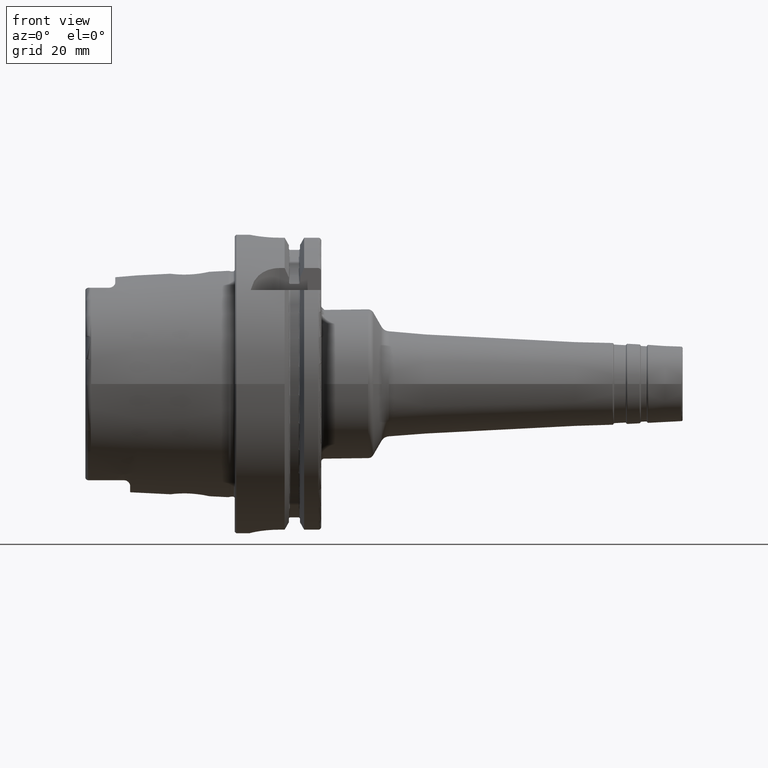
[diagram: clean part render]
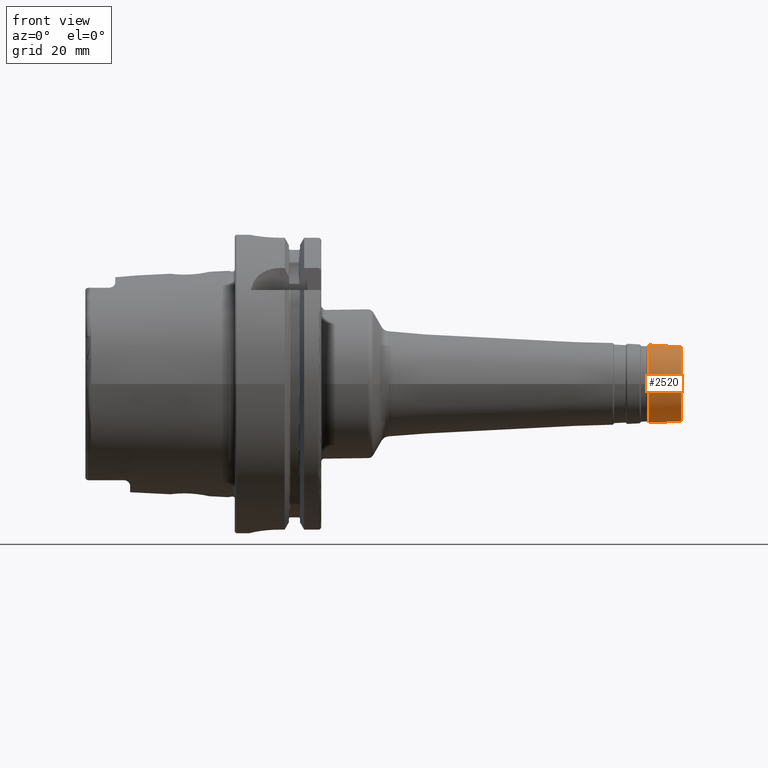
[diagram: same view with one face highlighted and labeled with its STEP entity id]
A machine part, front view. The second image highlights one B-rep face of the part: STEP entity #2520.
In plain terms, the highlighted conical surface has half-angle 3 deg.
Its self-contained STEP definition (entity closure, byte-faithful):
#99=CONICAL_SURFACE('',#2730,12.8062069282811,0.0523598775598298);
#181=LINE('',#4024,#295);
#295=VECTOR('',#3189,12.8062069282811);
#443=FACE_OUTER_BOUND('',#578,.T.);
#578=EDGE_LOOP('',(#1755,#1756,#1757,#1758,#1759,#1760,#1761,#1762));
#760=CIRCLE('',#2726,13.1003273851922);
#761=CIRCLE('',#2727,13.1003273851922);
#763=CIRCLE('',#2729,13.1003273851922);
#764=CIRCLE('',#2731,12.5248324840198);
#765=CIRCLE('',#2732,12.5248324840198);
#766=CIRCLE('',#2733,12.5248324840198);
#989=VERTEX_POINT('',#4011);
#990=VERTEX_POINT('',#4012);
#991=VERTEX_POINT('',#4014);
#992=VERTEX_POINT('',#4019);
#993=VERTEX_POINT('',#4020);
#994=VERTEX_POINT('',#4022);
#1290=EDGE_CURVE('',#989,#990,#760,.T.);
#1291=EDGE_CURVE('',#990,#991,#761,.T.);
#1293=EDGE_CURVE('',#991,#989,#763,.T.);
#1294=EDGE_CURVE('',#992,#993,#764,.T.);
#1295=EDGE_CURVE('',#994,#992,#765,.T.);
#1296=EDGE_CURVE('',#994,#990,#181,.T.);
#1297=EDGE_CURVE('',#993,#994,#766,.T.);
#1755=ORIENTED_EDGE('',*,*,#1294,.F.);
#1756=ORIENTED_EDGE('',*,*,#1295,.F.);
#1757=ORIENTED_EDGE('',*,*,#1296,.T.);
#1758=ORIENTED_EDGE('',*,*,#1290,.F.);
#1759=ORIENTED_EDGE('',*,*,#1293,.F.);
#1760=ORIENTED_EDGE('',*,*,#1291,.F.);
#1761=ORIENTED_EDGE('',*,*,#1296,.F.);
#1762=ORIENTED_EDGE('',*,*,#1297,.F.);
#2520=ADVANCED_FACE('',(#443),#99,.T.);
#2726=AXIS2_PLACEMENT_3D('',#4013,#3175,#3176);
#2727=AXIS2_PLACEMENT_3D('',#4015,#3177,#3178);
#2729=AXIS2_PLACEMENT_3D('',#4017,#3181,#3182);
#2730=AXIS2_PLACEMENT_3D('',#4018,#3183,#3184);
#2731=AXIS2_PLACEMENT_3D('',#4021,#3185,#3186);
#2732=AXIS2_PLACEMENT_3D('',#4023,#3187,#3188);
#2733=AXIS2_PLACEMENT_3D('',#4025,#3190,#3191);
#3175=DIRECTION('center_axis',(-1.,0.,0.));
#3176=DIRECTION('ref_axis',(0.,-1.,3.06161699786838E-17));
#3177=DIRECTION('center_axis',(-1.,0.,0.));
#3178=DIRECTION('ref_axis',(0.,-1.,3.06161699786838E-17));
#3181=DIRECTION('center_axis',(-1.,0.,0.));
#3182=DIRECTION('ref_axis',(0.,-1.,3.06161699786838E-17));
#3183=DIRECTION('center_axis',(-1.,0.,0.));
#3184=DIRECTION('ref_axis',(0.,1.,0.));
#3185=DIRECTION('center_axis',(1.,0.,0.));
#3186=DIRECTION('ref_axis',(0.,-1.,3.06161699786838E-17));
#3187=DIRECTION('center_axis',(1.,0.,0.));
#3188=DIRECTION('ref_axis',(0.,-1.,3.06161699786838E-17));
#3189=DIRECTION('',(-0.998629534754574,-0.0523359562429437,-6.4093061293237E-18));
#3190=DIRECTION('center_axis',(1.,0.,0.));
#3191=DIRECTION('ref_axis',(0.,-1.,3.06161699786838E-17));
#4011=CARTESIAN_POINT('',(138.545071105762,13.1003273851922,-4.0108185000145E-15));
#4012=CARTESIAN_POINT('',(138.545071105762,-13.1003273851922,-1.6043274000058E-15));
#4013=CARTESIAN_POINT('Origin',(138.545071105762,0.,-2.00540925000725E-15));
#4014=CARTESIAN_POINT('',(138.545071105762,-1.6043274000058E-15,13.1003273851922));
#4015=CARTESIAN_POINT('Origin',(138.545071105762,0.,-2.00540925000725E-15));
#4017=CARTESIAN_POINT('Origin',(138.545071105762,0.,-2.00540925000725E-15));
#4018=CARTESIAN_POINT('Origin',(144.157223746739,0.,0.));
#4019=CARTESIAN_POINT('',(149.526167978121,12.5248324840198,-7.66924800570585E-16));
#4020=CARTESIAN_POINT('',(149.526167978121,-1.53384960114117E-15,12.5248324840198));
#4021=CARTESIAN_POINT('Origin',(149.526167978121,0.,-1.91731200142646E-15));
#4022=CARTESIAN_POINT('',(149.526167978121,-12.5248324840198,-1.53384960114117E-15));
#4023=CARTESIAN_POINT('Origin',(149.526167978121,0.,-1.91731200142646E-15));
#4024=CARTESIAN_POINT('',(144.157223746739,-12.8062069282811,-1.56830803239381E-15));
#4025=CARTESIAN_POINT('Origin',(149.526167978121,0.,-1.91731200142646E-15));